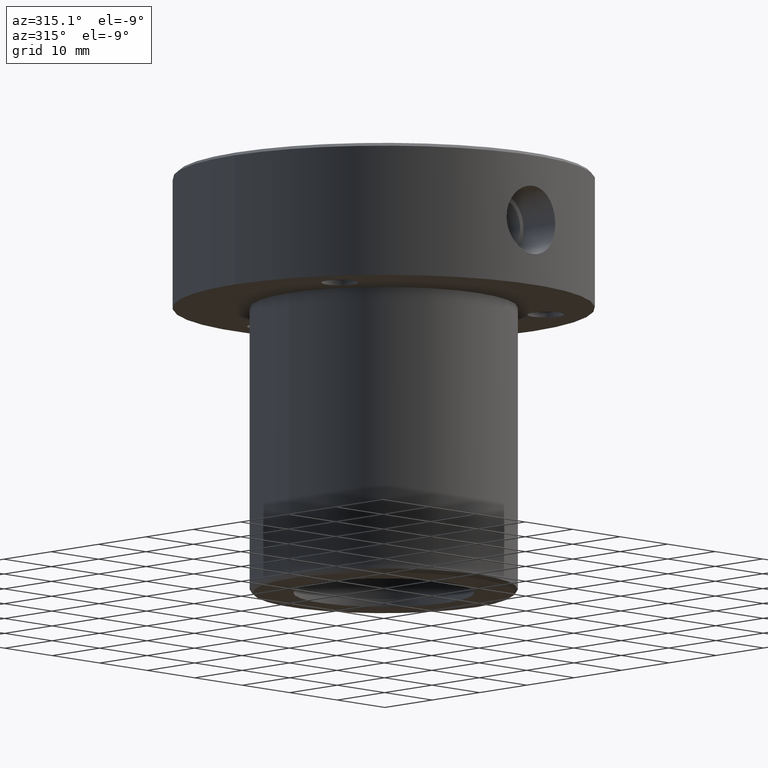
[diagram: clean part render]
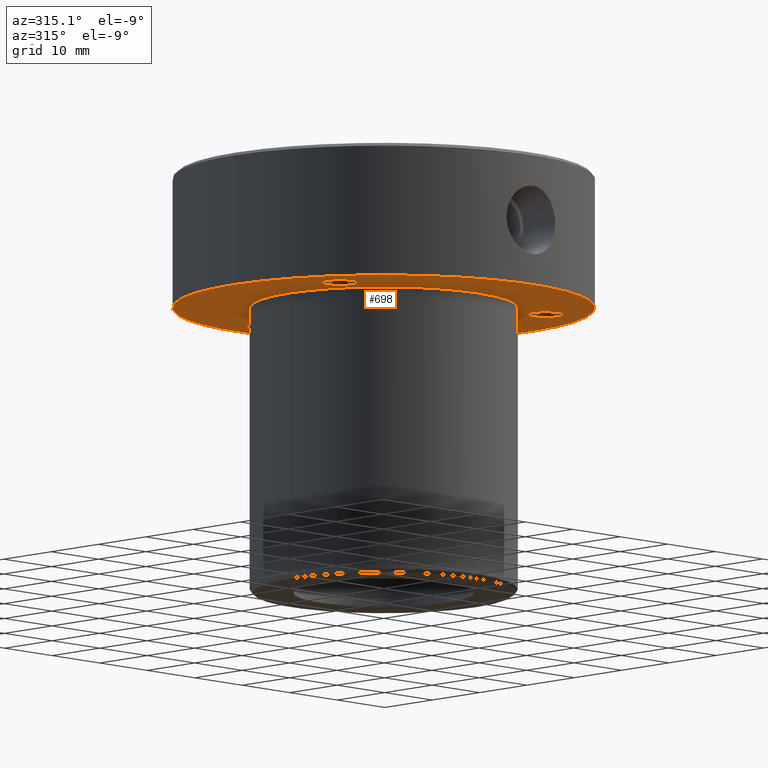
[diagram: same view with one face highlighted and labeled with its STEP entity id]
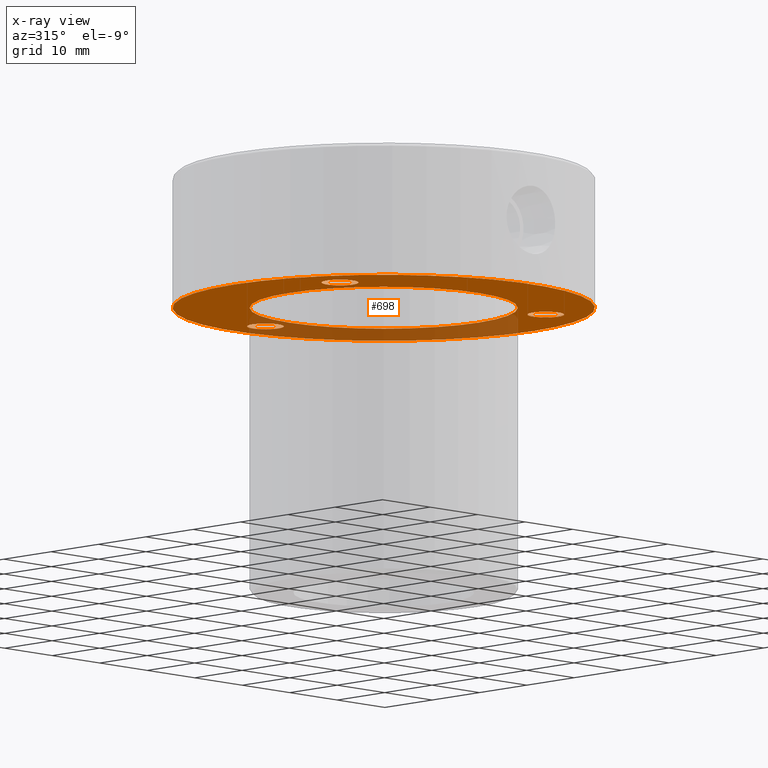
[diagram: x-ray of the same camera — body ghosted, the highlighted face saturated]
A machine part, auxiliary view. The second image highlights one B-rep face of the part: STEP entity #698.
The next image is the same camera in x-ray: the body ghosted, the highlighted face saturated — about 29% of this face is hidden behind the body in this view.
In plain terms, the highlighted planar face has unit normal (0, 0, -1).
Its self-contained STEP definition (entity closure, byte-faithful):
#5 = FACE_OUTER_BOUND ( 'NONE', #846, .T. ) ;
#12 = DIRECTION ( 'NONE',  ( -0.000000000000000000, -0.000000000000000000, 1.000000000000000000 ) ) ;
#18 = DIRECTION ( 'NONE',  ( 1.000000000000000000, 0.000000000000000000, 0.000000000000000000 ) ) ;
#23 = CARTESIAN_POINT ( 'NONE',  ( 0.000000000000000000, 0.000000000000000000, -20.00000000000000000 ) ) ;
#27 = CIRCLE ( 'NONE', #717, 2.749999999999995559 ) ;
#28 = CIRCLE ( 'NONE', #369, 20.00000000000000000 ) ;
#52 = EDGE_LOOP ( 'NONE', ( #895, #476 ) ) ;
#59 = AXIS2_PLACEMENT_3D ( 'NONE', #590, #398, #596 ) ;
#65 = DIRECTION ( 'NONE',  ( 0.000000000000000000, 0.000000000000000000, -1.000000000000000000 ) ) ;
#75 = DIRECTION ( 'NONE',  ( 0.000000000000000000, 0.000000000000000000, -1.000000000000000000 ) ) ;
#91 = FACE_BOUND ( 'NONE', #52, .T. ) ;
#104 = AXIS2_PLACEMENT_3D ( 'NONE', #881, #309, #877 ) ;
#124 = AXIS2_PLACEMENT_3D ( 'NONE', #859, #75, #664 ) ;
#141 = CIRCLE ( 'NONE', #224, 2.749999999999995559 ) ;
#190 = CARTESIAN_POINT ( 'NONE',  ( -20.00000000000000000, 2.449293598294706513E-15, -20.00000000000000000 ) ) ;
#198 = EDGE_LOOP ( 'NONE', ( #1142, #1069 ) ) ;
#206 = AXIS2_PLACEMENT_3D ( 'NONE', #507, #886, #982 ) ;
#209 = DIRECTION ( 'NONE',  ( 1.000000000000000000, 0.000000000000000000, 0.000000000000000000 ) ) ;
#224 = AXIS2_PLACEMENT_3D ( 'NONE', #427, #601, #705 ) ;
#236 = EDGE_CURVE ( 'NONE', #559, #981, #462, .T. ) ;
#259 = CARTESIAN_POINT ( 'NONE',  ( -24.40063509461099756, -12.49999999999995381, -20.00000000000000000 ) ) ;
#307 = VERTEX_POINT ( 'NONE', #648 ) ;
#309 = DIRECTION ( 'NONE',  ( 0.000000000000000000, 0.000000000000000000, -1.000000000000000000 ) ) ;
#340 = VERTEX_POINT ( 'NONE', #190 ) ;
#369 = AXIS2_PLACEMENT_3D ( 'NONE', #876, #583, #209 ) ;
#378 = DIRECTION ( 'NONE',  ( 0.000000000000000000, 0.000000000000000000, -1.000000000000000000 ) ) ;
#398 = DIRECTION ( 'NONE',  ( -0.000000000000000000, -0.000000000000000000, 1.000000000000000000 ) ) ;
#410 = DIRECTION ( 'NONE',  ( 1.000000000000000000, 0.000000000000000000, 0.000000000000000000 ) ) ;
#417 = CARTESIAN_POINT ( 'NONE',  ( -21.65063509461100111, -12.49999999999995381, -20.00000000000000000 ) ) ;
#427 = CARTESIAN_POINT ( 'NONE',  ( -21.65063509461100111, -12.49999999999995381, -20.00000000000000000 ) ) ;
#440 = AXIS2_PLACEMENT_3D ( 'NONE', #951, #378, #934 ) ;
#444 = EDGE_LOOP ( 'NONE', ( #1216, #1062 ) ) ;
#455 = VERTEX_POINT ( 'NONE', #822 ) ;
#462 = CIRCLE ( 'NONE', #918, 31.50000000000000000 ) ;
#466 = ORIENTED_EDGE ( 'NONE', *, *, #1046, .F. ) ;
#470 = FACE_BOUND ( 'NONE', #198, .T. ) ;
#476 = ORIENTED_EDGE ( 'NONE', *, *, #828, .F. ) ;
#484 = PLANE ( 'NONE',  #206 ) ;
#490 = DIRECTION ( 'NONE',  ( -1.000000000000000000, 0.000000000000000000, 0.000000000000000000 ) ) ;
#507 = CARTESIAN_POINT ( 'NONE',  ( 0.000000000000000000, 31.50000000000000000, -20.00000000000000000 ) ) ;
#548 = VERTEX_POINT ( 'NONE', #259 ) ;
#559 = VERTEX_POINT ( 'NONE', #793 ) ;
#580 = CARTESIAN_POINT ( 'NONE',  ( -31.50000000000000000, 3.857637417314162689E-15, -20.00000000000000000 ) ) ;
#583 = DIRECTION ( 'NONE',  ( -0.000000000000000000, -0.000000000000000000, 1.000000000000000000 ) ) ;
#590 = CARTESIAN_POINT ( 'NONE',  ( 0.000000000000000000, 0.000000000000000000, -20.00000000000000000 ) ) ;
#595 = DIRECTION ( 'NONE',  ( -0.000000000000000000, -0.000000000000000000, 1.000000000000000000 ) ) ;
#596 = DIRECTION ( 'NONE',  ( 1.000000000000000000, 0.000000000000000000, 0.000000000000000000 ) ) ;
#597 = EDGE_CURVE ( 'NONE', #775, #672, #637, .T. ) ;
#601 = DIRECTION ( 'NONE',  ( 0.000000000000000000, 0.000000000000000000, -1.000000000000000000 ) ) ;
#620 = CIRCLE ( 'NONE', #1117, 2.749999999999995559 ) ;
#626 = ORIENTED_EDGE ( 'NONE', *, *, #236, .F. ) ;
#630 = ORIENTED_EDGE ( 'NONE', *, *, #977, .F. ) ;
#637 = CIRCLE ( 'NONE', #104, 2.749999999999995559 ) ;
#648 = CARTESIAN_POINT ( 'NONE',  ( -18.90063509461100466, -12.49999999999995381, -20.00000000000000000 ) ) ;
#660 = CIRCLE ( 'NONE', #847, 31.50000000000000000 ) ;
#664 = DIRECTION ( 'NONE',  ( -1.000000000000000000, 0.000000000000000000, 0.000000000000000000 ) ) ;
#672 = VERTEX_POINT ( 'NONE', #1038 ) ;
#680 = CIRCLE ( 'NONE', #59, 20.00000000000000000 ) ;
#681 = DIRECTION ( 'NONE',  ( 0.000000000000000000, 0.000000000000000000, -1.000000000000000000 ) ) ;
#698 = ADVANCED_FACE ( 'NONE', ( #470, #953, #91, #866, #5 ), #484, .T. ) ;
#705 = DIRECTION ( 'NONE',  ( -1.000000000000000000, 0.000000000000000000, 0.000000000000000000 ) ) ;
#717 = AXIS2_PLACEMENT_3D ( 'NONE', #897, #681, #490 ) ;
#775 = VERTEX_POINT ( 'NONE', #1133 ) ;
#793 = CARTESIAN_POINT ( 'NONE',  ( 31.50000000000000000, 0.000000000000000000, -20.00000000000000000 ) ) ;
#822 = CARTESIAN_POINT ( 'NONE',  ( 20.00000000000000000, 0.000000000000000000, -20.00000000000000000 ) ) ;
#824 = EDGE_CURVE ( 'NONE', #974, #825, #1138, .T. ) ;
#825 = VERTEX_POINT ( 'NONE', #940 ) ;
#828 = EDGE_CURVE ( 'NONE', #672, #775, #1099, .T. ) ;
#832 = ORIENTED_EDGE ( 'NONE', *, *, #824, .F. ) ;
#846 = EDGE_LOOP ( 'NONE', ( #626, #466 ) ) ;
#847 = AXIS2_PLACEMENT_3D ( 'NONE', #23, #12, #18 ) ;
#859 = CARTESIAN_POINT ( 'NONE',  ( 0.000000000000000000, 25.00000000000001066, -20.00000000000000000 ) ) ;
#866 = FACE_BOUND ( 'NONE', #444, .T. ) ;
#872 = CARTESIAN_POINT ( 'NONE',  ( 18.90063509461092295, -12.50000000000010125, -20.00000000000000000 ) ) ;
#876 = CARTESIAN_POINT ( 'NONE',  ( 0.000000000000000000, 0.000000000000000000, -20.00000000000000000 ) ) ;
#877 = DIRECTION ( 'NONE',  ( -1.000000000000000000, 0.000000000000000000, 0.000000000000000000 ) ) ;
#881 = CARTESIAN_POINT ( 'NONE',  ( 0.000000000000000000, 25.00000000000001066, -20.00000000000000000 ) ) ;
#886 = DIRECTION ( 'NONE',  ( 0.000000000000000000, 0.000000000000000000, -1.000000000000000000 ) ) ;
#888 = CARTESIAN_POINT ( 'NONE',  ( 0.000000000000000000, 0.000000000000000000, -20.00000000000000000 ) ) ;
#895 = ORIENTED_EDGE ( 'NONE', *, *, #597, .F. ) ;
#897 = CARTESIAN_POINT ( 'NONE',  ( 21.65063509461091940, -12.50000000000010125, -20.00000000000000000 ) ) ;
#917 = EDGE_LOOP ( 'NONE', ( #630, #832 ) ) ;
#918 = AXIS2_PLACEMENT_3D ( 'NONE', #888, #595, #410 ) ;
#934 = DIRECTION ( 'NONE',  ( -1.000000000000000000, 0.000000000000000000, 0.000000000000000000 ) ) ;
#940 = CARTESIAN_POINT ( 'NONE',  ( 24.40063509461091229, -12.50000000000010125, -20.00000000000000000 ) ) ;
#951 = CARTESIAN_POINT ( 'NONE',  ( 21.65063509461091940, -12.50000000000010125, -20.00000000000000000 ) ) ;
#953 = FACE_BOUND ( 'NONE', #917, .T. ) ;
#974 = VERTEX_POINT ( 'NONE', #872 ) ;
#977 = EDGE_CURVE ( 'NONE', #825, #974, #27, .T. ) ;
#981 = VERTEX_POINT ( 'NONE', #580 ) ;
#982 = DIRECTION ( 'NONE',  ( -1.000000000000000000, 0.000000000000000000, -0.000000000000000000 ) ) ;
#1032 = EDGE_CURVE ( 'NONE', #340, #455, #680, .T. ) ;
#1038 = CARTESIAN_POINT ( 'NONE',  ( -2.749999999999995559, 25.00000000000001066, -20.00000000000000000 ) ) ;
#1046 = EDGE_CURVE ( 'NONE', #981, #559, #660, .T. ) ;
#1062 = ORIENTED_EDGE ( 'NONE', *, *, #1032, .T. ) ;
#1069 = ORIENTED_EDGE ( 'NONE', *, *, #1180, .F. ) ;
#1099 = CIRCLE ( 'NONE', #124, 2.749999999999995559 ) ;
#1117 = AXIS2_PLACEMENT_3D ( 'NONE', #417, #65, #1195 ) ;
#1133 = CARTESIAN_POINT ( 'NONE',  ( 2.749999999999995559, 25.00000000000001066, -20.00000000000000000 ) ) ;
#1138 = CIRCLE ( 'NONE', #440, 2.749999999999995559 ) ;
#1142 = ORIENTED_EDGE ( 'NONE', *, *, #1219, .F. ) ;
#1180 = EDGE_CURVE ( 'NONE', #548, #307, #141, .T. ) ;
#1195 = DIRECTION ( 'NONE',  ( -1.000000000000000000, 0.000000000000000000, 0.000000000000000000 ) ) ;
#1216 = ORIENTED_EDGE ( 'NONE', *, *, #1243, .T. ) ;
#1219 = EDGE_CURVE ( 'NONE', #307, #548, #620, .T. ) ;
#1243 = EDGE_CURVE ( 'NONE', #455, #340, #28, .T. ) ;